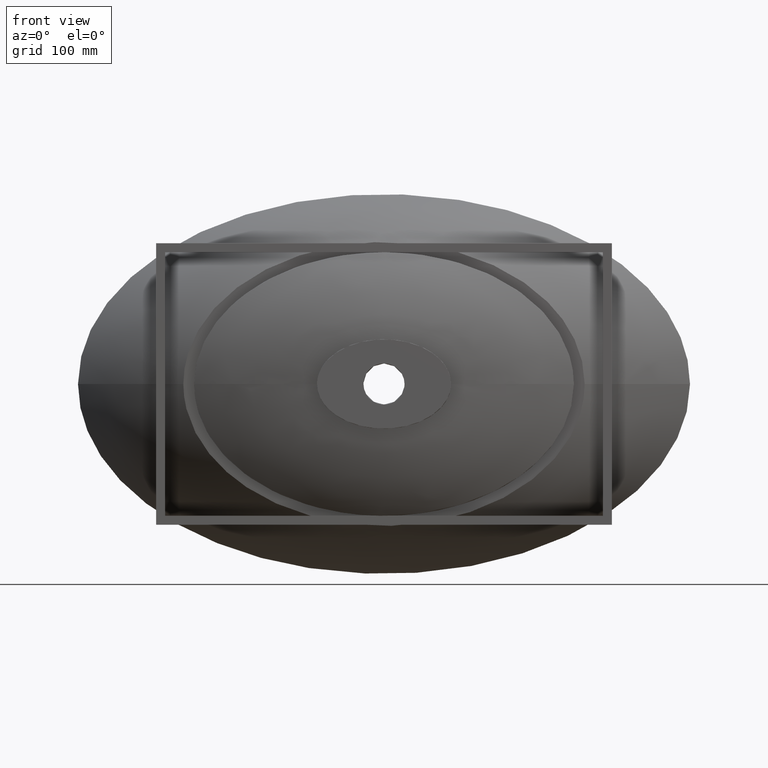
[diagram: clean part render]
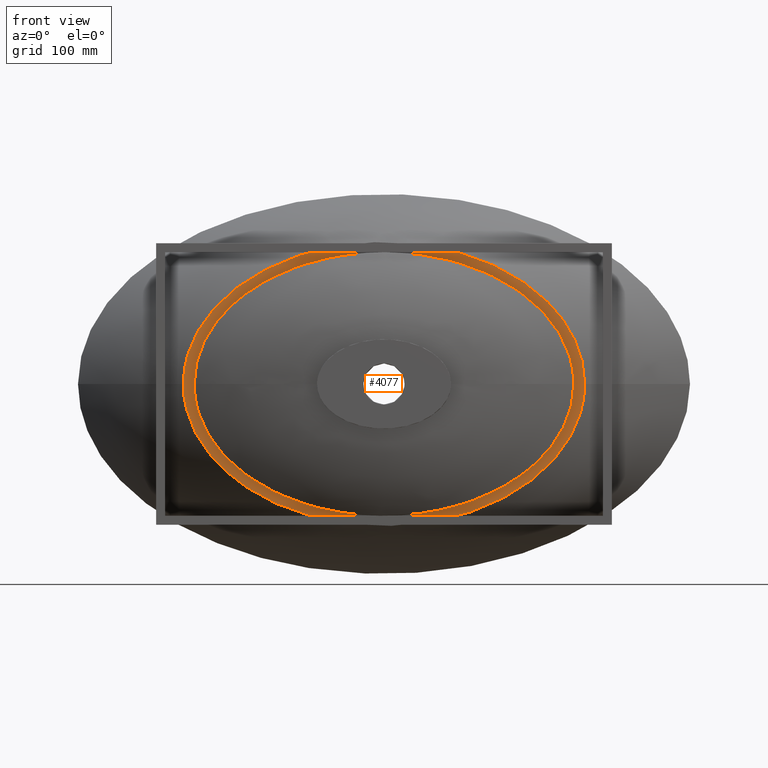
[diagram: same view with one face highlighted and labeled with its STEP entity id]
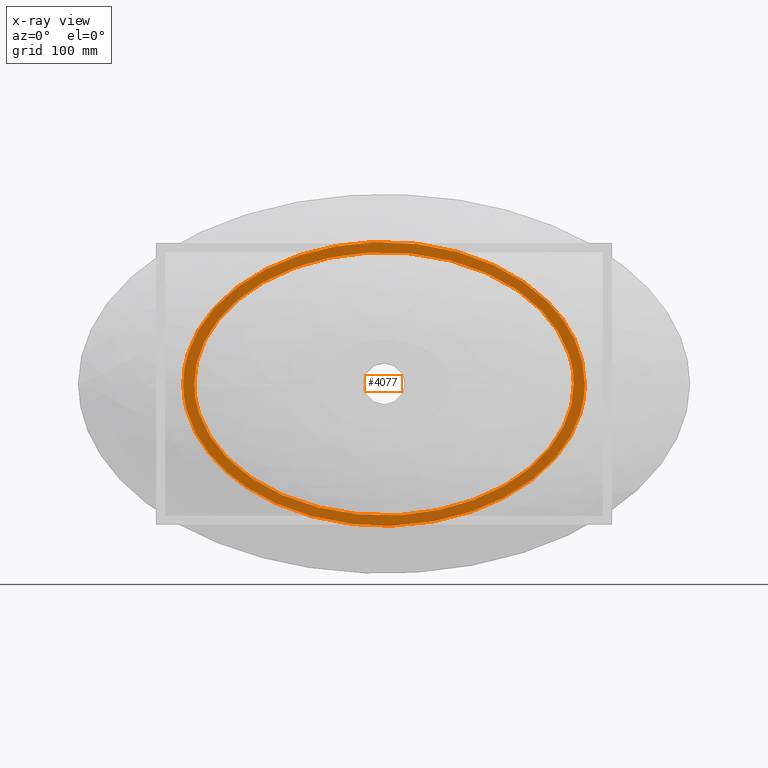
[diagram: x-ray of the same camera — body ghosted, the highlighted face saturated]
A machine part, front view. The second image highlights one B-rep face of the part: STEP entity #4077.
The next image is the same camera in x-ray: the body ghosted, the highlighted face saturated — about 0% of this face is hidden behind the body in this view.
In plain terms, the highlighted planar face has unit normal (0, -1, 0).
Its self-contained STEP definition (entity closure, byte-faithful):
#40 = FACE_OUTER_BOUND ( 'NONE', #2596, .T. ) ;
#85 = CARTESIAN_POINT ( 'NONE',  ( 80.81153180204727000, -89.99999999999997200, -148.1587488823089100 ) ) ;
#90 = CARTESIAN_POINT ( 'NONE',  ( -71.92873897644672400, -89.99999999999998600, -150.3968504112172900 ) ) ;
#102 = CARTESIAN_POINT ( 'NONE',  ( -31.49518096590334800, -89.99999999999992900, -157.3136843241640600 ) ) ;
#114 = CARTESIAN_POINT ( 'NONE',  ( 98.79011802736921800, -89.99999999999997200, -142.5698285613368900 ) ) ;
#117 = CARTESIAN_POINT ( 'NONE',  ( -212.4999999999999700, -90.00000000000000000, -294.9999999999998900 ) ) ;
#118 = CARTESIAN_POINT ( 'NONE',  ( -122.4593832958233600, -89.99999999999994300, -133.0341814347948700 ) ) ;
#143 = CARTESIAN_POINT ( 'NONE',  ( -105.0834245636851000, -90.00000000000000000, -140.2912056764173800 ) ) ;
#163 = CARTESIAN_POINT ( 'NONE',  ( -133.7517210043533600, -89.99999999999995700, -127.4778574131748000 ) ) ;
#203 = CARTESIAN_POINT ( 'NONE',  ( -212.5000000000000000, -90.00000000000000000, 0.0000000000000000000 ) ) ;
#222 = VERTEX_POINT ( 'NONE', #2876 ) ;
#239 = CARTESIAN_POINT ( 'NONE',  ( -197.1804191354389700, -90.00000000000001400, -76.03757057501891800 ) ) ;
#251 = CARTESIAN_POINT ( 'NONE',  ( 117.9179899975935900, -90.00000000000001400, -134.9948072081885500 ) ) ;
#265 = CARTESIAN_POINT ( 'NONE',  ( 116.4572048645990300, -89.99999999999995700, -135.6293690108966000 ) ) ;
#276 = CARTESIAN_POINT ( 'NONE',  ( 113.5316857372531800, -89.99999999999997200, -136.8685296211080000 ) ) ;
#321 = CARTESIAN_POINT ( 'NONE',  ( -50.21720341876704900, -90.00000000000000000, -154.8307071068389900 ) ) ;
#323 = CARTESIAN_POINT ( 'NONE',  ( -217.2857689026804200, -90.00000000000002800, -40.24274714386295000 ) ) ;
#418 = CARTESIAN_POINT ( 'NONE',  ( -224.6087551990092900, -90.00000000000005700, 6.502527523159562800E-014 ) ) ;
#423 = CARTESIAN_POINT ( 'NONE',  ( -224.6087551954226200, -90.00000000092079200, 0.7998453074805304000 ) ) ;
#425 = CARTESIAN_POINT ( 'NONE',  ( -224.6000546803275000, -90.00000000000001400, 1.602438689250854600 ) ) ;
#431 = CARTESIAN_POINT ( 'NONE',  ( -224.5653669271117700, -90.00000000000000000, 3.203643830570029700 ) ) ;
#437 = CARTESIAN_POINT ( 'NONE',  ( -224.4356304394415200, -90.00000000000001400, 6.403188930941166900 ) ) ;
#442 = CARTESIAN_POINT ( 'NONE',  ( 252.4999999999999400, -90.00000000000000000, 1.457167719820518000E-013 ) ) ;
#445 = CARTESIAN_POINT ( 'NONE',  ( -224.3320902511742400, -90.00000000000004300, 8.001125822276117500 ) ) ;
#449 = CARTESIAN_POINT ( 'NONE',  ( -224.0567963208201000, -90.00000000000005700, 11.19376168102901100 ) ) ;
#459 = CARTESIAN_POINT ( 'NONE',  ( -223.8851517060861900, -90.00000000000002800, 12.78605858766555600 ) ) ;
#466 = CARTESIAN_POINT ( 'NONE',  ( -223.4770845552599200, -90.00000000000005700, 15.94887474229779100 ) ) ;
#470 = CARTESIAN_POINT ( 'NONE',  ( -223.2404936332408500, -90.00000000000005700, 17.52147828173318800 ) ) ;
#472 = CARTESIAN_POINT ( 'NONE',  ( -221.8989846311665700, -90.00000000000002800, 25.34161784860239000 ) ) ;
#473 = CARTESIAN_POINT ( 'NONE',  ( -220.3212562188008400, -90.00000000000004300, 31.46129098439789800 ) ) ;
#485 = CARTESIAN_POINT ( 'NONE',  ( -217.2423132182350700, -90.00000000000001400, 40.44815857881395300 ) ) ;
#501 = CARTESIAN_POINT ( 'NONE',  ( -216.0965986775162500, -90.00000000000004300, 43.41149151187612900 ) ) ;
#503 = CARTESIAN_POINT ( 'NONE',  ( 86.83636199795358800, -89.99999999999998600, -146.4344793078796300 ) ) ;
#507 = CARTESIAN_POINT ( 'NONE',  ( -214.2005545410915800, -90.00000000000002800, 47.80849677269132800 ) ) ;
#517 = CARTESIAN_POINT ( 'NONE',  ( -213.5376664396139000, -89.99999999999994300, 49.26866589445636200 ) ) ;
#523 = CARTESIAN_POINT ( 'NONE',  ( -212.1637197586166200, -89.99999999999998600, 52.15098724000666400 ) ) ;
#525 = CARTESIAN_POINT ( 'NONE',  ( -211.4518818425249000, -90.00000000000001400, 53.57522240238431300 ) ) ;
#530 = CARTESIAN_POINT ( 'NONE',  ( -207.7729574092552700, -89.99999999999997200, 60.61489376676976100 ) ) ;
#533 = B_SPLINE_CURVE_WITH_KNOTS ( 'NONE', 3,
 ( #1933, #3144, #3537, #4369, #1315, #1097, #323, #4125, #3234, #3307, #3187, #1886, #3083, #4103, #239, #2900, #2981, #3753, #3988, #3208, #1590, #788, #944, #3293, #3522, #2646, #3376, #1487, #163, #118, #3584, #143, #2832, #4432, #2521, #90, #4493, #824, #837, #321, #1173, #102, #978, #832, #987, #966, #1029, #947, #1084, #1153, #1141, #1169, #1134, #1748, #1518, #1294, #587, #85, #503, #114, #1191, #3909, #276, #265, #251, #4376, #4427, #3982, #4343, #4332, #4330, #4315, #4295, #1381, #1481, #1362, #3903, #3891, #3884, #3866, #3828, #3535, #3525, #3514, #3497, #3369, #3243, #3228, #3222, #3207, #3190, #2886, #2843, #2831, #2826, #2816, #2790, #2516, #2508, #2497 ),
 .UNSPECIFIED., .F., .F.,
 ( 4, 2, 2, 2, 2, 2, 2, 2, 2, 2, 2, 2, 2, 2, 2, 2, 2, 2, 2, 2, 2, 2, 2, 2, 2, 2, 2, 2, 2, 2, 2, 2, 2, 2, 2, 2, 2, 2, 2, 2, 2, 2, 2, 2, 2, 2, 2, 2, 2, 4 ),
 ( 0.0000000000000000000, 0.01887746339497712800, 0.03775492678995425600, 0.04247429263869854200, 0.04719365848744284200, 0.05663239018493141500, 0.07550985357990859500, 0.08494858527739719600, 0.08966795112614146800, 0.09438731697488572700, 0.1132647803698628000, 0.1321422437648398800, 0.1415809754623284200, 0.1510197071598169100, 0.1698971705547939200, 0.1887746339497709000, 0.2076520973447479000, 0.2265295607397249100, 0.2359682924372134600, 0.2454070241347019500, 0.2642844875296790400, 0.2831619509246560700, 0.3020394143196331600, 0.3114781460171216500, 0.3161975118658659200, 0.3209168777146102500, 0.3397943411095872800, 0.3586718045045643700, 0.3775492678995414100, 0.3964267312945185000, 0.4153041946894955900, 0.4200235605382398600, 0.4247429263869841300, 0.4341816580844726800, 0.4530591214794497100, 0.4719365848744268000, 0.4813753165719153500, 0.4860946824206596200, 0.4908140482694038900, 0.5096915116643810900, 0.5285689750593582900, 0.5380077067568469500, 0.5427270726055911700, 0.5474464384543353800, 0.5663239018493125800, 0.5757626335468011300, 0.5804819993955454600, 0.5828416823199175100, 0.5852013652442896700, 0.6040788286392667600 ),
 .UNSPECIFIED. ) ;
#536 = CARTESIAN_POINT ( 'NONE',  ( -197.1260250187818300, -90.00000000000004300, 76.27290926580208500 ) ) ;
#538 = CARTESIAN_POINT ( 'NONE',  ( -193.1280617582166000, -90.00000000000000000, 81.18661963408023000 ) ) ;
#542 = CARTESIAN_POINT ( 'NONE',  ( -187.7483965739029900, -90.00000000000004300, 87.06858351390047800 ) ) ;
#545 = CARTESIAN_POINT ( 'NONE',  ( -186.6525112088306200, -90.00000000000000000, 88.23261647207952800 ) ) ;
#551 = CARTESIAN_POINT ( 'NONE',  ( -184.4362280467504400, -90.00000000000000000, 90.52173407779298500 ) ) ;
#555 = CARTESIAN_POINT ( 'NONE',  ( -183.3143224338888300, -89.99999999999997200, 91.64851935489943500 ) ) ;
#557 = CARTESIAN_POINT ( 'NONE',  ( -179.9088991145562800, -90.00000000000000000, 94.97760211687794700 ) ) ;
#561 = CARTESIAN_POINT ( 'NONE',  ( -177.5857356615565000, -90.00000000000002800, 97.12870495864329700 ) ) ;
#563 = CARTESIAN_POINT ( 'NONE',  ( -165.7224630461082000, -89.99999999999998600, 107.5646795078555700 ) ) ;
#569 = CARTESIAN_POINT ( 'NONE',  ( -155.4429937223311500, -90.00000000000000000, 114.8948137491105300 ) ) ;
#575 = CARTESIAN_POINT ( 'NONE',  ( -141.7777618091449200, -89.99999999999995700, 123.0039141386274900 ) ) ;
#577 = CARTESIAN_POINT ( 'NONE',  ( -138.9993322928016300, -90.00000000000001400, 124.5748564826832600 ) ) ;
#580 = CARTESIAN_POINT ( 'NONE',  ( -133.4134192301642100, -90.00000000000005700, 127.5878671535850200 ) ) ;
#583 = CARTESIAN_POINT ( 'NONE',  ( -130.6005323151618400, -90.00000000000005700, 129.0333694130205200 ) ) ;
#587 = CARTESIAN_POINT ( 'NONE',  ( 68.67115575770562000, -89.99999999999997200, -151.2136893025448200 ) ) ;
#588 = CARTESIAN_POINT ( 'NONE',  ( -122.1055136286422700, -90.00000000000005700, 133.1973753581908100 ) ) ;
#594 = CARTESIAN_POINT ( 'NONE',  ( -116.3672369096719900, -90.00000000000001400, 135.7440301446923700 ) ) ;
#598 = CARTESIAN_POINT ( 'NONE',  ( -104.7527012766200900, -90.00000000000000000, 140.4150027235470500 ) ) ;
#604 = CARTESIAN_POINT ( 'NONE',  ( -98.87631043967492400, -90.00000000000001400, 142.5389167253569300 ) ) ;
#609 = CARTESIAN_POINT ( 'NONE',  ( -86.99288216074512500, -90.00000000000000000, 146.3868605669427400 ) ) ;
#611 = CARTESIAN_POINT ( 'NONE',  ( -80.98582603244715000, -90.00000000000001400, 148.1108332115027800 ) ) ;
#615 = CARTESIAN_POINT ( 'NONE',  ( -68.84589187585037000, -90.00000000000001400, 151.1736618339303700 ) ) ;
#618 = CARTESIAN_POINT ( 'NONE',  ( -62.71299465889509900, -90.00000000000004300, 152.5124590790070400 ) ) ;
#624 = CARTESIAN_POINT ( 'NONE',  ( -53.42121377179723400, -90.00000000000002800, 154.2377289787762300 ) ) ;
#628 = CARTESIAN_POINT ( 'NONE',  ( -50.30854711549531500, -90.00000000000001400, 154.7656630349790400 ) ) ;
#631 = CARTESIAN_POINT ( 'NONE',  ( -45.61651695401130300, -89.99999999999998600, 155.4870731712728700 ) ) ;
#638 = CARTESIAN_POINT ( 'NONE',  ( -44.04866629534765100, -89.99999999999997200, 155.7157878630461900 ) ) ;
#642 = CARTESIAN_POINT ( 'NONE',  ( -40.90527020731906300, -89.99999999999994300, 156.1496650315704400 ) ) ;
#651 = CARTESIAN_POINT ( 'NONE',  ( -39.33046059786759900, -89.99999999999998600, 156.3547023028764000 ) ) ;
#652 = CARTESIAN_POINT ( 'NONE',  ( -31.46364774309314100, -90.00000000000000000, 157.3178684936547100 ) ) ;
#656 = CARTESIAN_POINT ( 'NONE',  ( -25.17311288834501700, -90.00000000000001400, 157.8933475895222200 ) ) ;
#659 = CARTESIAN_POINT ( 'NONE',  ( -12.59774625518756300, -90.00000000000000000, 158.6627471811184800 ) ) ;
#663 = CARTESIAN_POINT ( 'NONE',  ( -6.312914937644762000, -90.00000000000001400, 158.8566368430383300 ) ) ;
#664 = CARTESIAN_POINT ( 'NONE',  ( 6.250970684039582000, -89.99999999999998600, 158.8579108817761200 ) ) ;
#669 = CARTESIAN_POINT ( 'NONE',  ( 12.53002473392257500, -90.00000000000002800, 158.6652782476792000 ) ) ;
#676 = CARTESIAN_POINT ( 'NONE',  ( 25.08246012554673100, -90.00000000000004300, 157.9004861331023900 ) ) ;
#680 = CARTESIAN_POINT ( 'NONE',  ( 31.35584173745339200, -90.00000000000000000, 157.3283447277664500 ) ) ;
#682 = CARTESIAN_POINT ( 'NONE',  ( 40.76158960030000600, -90.00000000000001400, 156.1808026057484500 ) ) ;
#686 = CARTESIAN_POINT ( 'NONE',  ( 43.89611656465211100, -90.00000000000004300, 155.7499622519113400 ) ) ;
#692 = CARTESIAN_POINT ( 'NONE',  ( 48.59679948769104400, -89.99999999999998600, 155.0296039733484300 ) ) ;
#696 = CARTESIAN_POINT ( 'NONE',  ( 50.16471477788579100, -89.99999999999997200, 154.7769190946772800 ) ) ;
#703 = CARTESIAN_POINT ( 'NONE',  ( 53.29372101650160000, -89.99999999999995700, 154.2475799145172700 ) ) ;
#716 = CARTESIAN_POINT ( 'NONE',  ( 54.85427832773713400, -89.99999999999995700, 153.9710392601694200 ) ) ;
#719 = CARTESIAN_POINT ( 'NONE',  ( 62.63728458753611500, -89.99999999999997200, 152.5288264620623700 ) ) ;
#726 = CARTESIAN_POINT ( 'NONE',  ( 68.80043167479618700, -90.00000000000000000, 151.1847431554206200 ) ) ;
#730 = CARTESIAN_POINT ( 'NONE',  ( 80.99764646543667400, -90.00000000000000000, 148.1082379221355400 ) ) ;
#732 = CARTESIAN_POINT ( 'NONE',  ( 87.03173406557111500, -90.00000000000001400, 146.3758758553849200 ) ) ;
#737 = CARTESIAN_POINT ( 'NONE',  ( 98.96599375253310900, -90.00000000000000000, 142.5082634831003100 ) ) ;
#743 = CARTESIAN_POINT ( 'NONE',  ( 104.8661847472850000, -89.99999999999998600, 140.3730700625396800 ) ) ;
#745 = CARTESIAN_POINT ( 'NONE',  ( 116.5250039042551700, -89.99999999999998600, 135.6767878276130800 ) ) ;
#750 = CARTESIAN_POINT ( 'NONE',  ( 122.2837701920104500, -90.00000000000002800, 133.1161145674494700 ) ) ;
#753 = CARTESIAN_POINT ( 'NONE',  ( 129.3863615749837900, -90.00000000000002800, 129.6268562508942600 ) ) ;
#764 = CARTESIAN_POINT ( 'NONE',  ( 130.8020677230053900, -89.99999999999998600, 128.9145271759853700 ) ) ;
#771 = CARTESIAN_POINT ( 'NONE',  ( 133.6235835517602500, -89.99999999999998600, 127.4600952518097600 ) ) ;
#772 = PLANE ( 'NONE',  #1961 ) ;
#777 = CARTESIAN_POINT ( 'NONE',  ( 135.0307307824799400, -90.00000000000000000, 126.7172640077398900 ) ) ;
#781 = CARTESIAN_POINT ( 'NONE',  ( 139.2268676597655300, -89.99999999999997200, 124.4481348348908700 ) ) ;
#788 = CARTESIAN_POINT ( 'NONE',  ( -170.7249560090370200, -90.00000000000005700, -103.1776541489284000 ) ) ;
#790 = CARTESIAN_POINT ( 'NONE',  ( 141.9857422822830100, -89.99999999999998600, 122.8840140109704700 ) ) ;
#792 = CARTESIAN_POINT ( 'NONE',  ( 155.5810572553354800, -89.99999999999998600, 114.7981637988771600 ) ) ;
#801 = DIRECTION ( 'NONE',  ( 0.0000000000000000000, -1.000000000000000000, 0.0000000000000000000 ) ) ;
#807 = CARTESIAN_POINT ( 'NONE',  ( 165.8238127482177000, -90.00000000000002800, 107.4853459928598200 ) ) ;
#813 = CARTESIAN_POINT ( 'NONE',  ( 177.6624494167944600, -90.00000000000000000, 97.05871204233115200 ) ) ;
#818 = CARTESIAN_POINT ( 'NONE',  ( 179.9817316946779600, -90.00000000000001400, 94.90883194237389400 ) ) ;
#823 = CARTESIAN_POINT ( 'NONE',  ( 183.3828153854087500, -90.00000000000001400, 91.58028991884120300 ) ) ;
#824 = CARTESIAN_POINT ( 'NONE',  ( -62.63778605353660800, -90.00000000000004300, -152.4780054447743700 ) ) ;
#829 = CARTESIAN_POINT ( 'NONE',  ( 184.5035213858579900, -90.00000000000002800, 90.45346857744719700 ) ) ;
#832 = CARTESIAN_POINT ( 'NONE',  ( -12.67406838485464600, -89.99999999999994300, -158.6594433496294400 ) ) ;
#833 = CARTESIAN_POINT ( 'NONE',  ( 186.7178827508949400, -90.00000000000000000, 88.16378076996167600 ) ) ;
#834 = EDGE_CURVE ( 'NONE', #222, #2995, #2246, .T. ) ;
#837 = CARTESIAN_POINT ( 'NONE',  ( -59.53587669791127000, -90.00000000000001400, -153.1033226300071100 ) ) ;
#839 = CARTESIAN_POINT ( 'NONE',  ( 187.8124869294719000, -89.99999999999994300, 86.99979094167962000 ) ) ;
#840 = CARTESIAN_POINT ( 'NONE',  ( 193.1847376147110500, -89.99999999999990100, 81.11933213005086400 ) ) ;
#841 = ORIENTED_EDGE ( 'NONE', *, *, #3698, .T. ) ;
#847 = CARTESIAN_POINT ( 'NONE',  ( 197.1834501206726000, -89.99999999999995700, 76.20019870879747300 ) ) ;
#852 = CARTESIAN_POINT ( 'NONE',  ( 204.5155080263721700, -90.00000000000000000, 65.88415121563848200 ) ) ;
#857 = CARTESIAN_POINT ( 'NONE',  ( 207.8495164444373700, -90.00000000000005700, 60.48771323779405400 ) ) ;
#859 = CARTESIAN_POINT ( 'NONE',  ( 212.2789146312765600, -90.00000000000001400, 51.98259666664616700 ) ) ;
#877 = CARTESIAN_POINT ( 'NONE',  ( 213.6452273956722400, -89.99999999999995700, 49.10639889797718600 ) ) ;
#879 = CARTESIAN_POINT ( 'NONE',  ( 216.1484834975445900, -89.99999999999995700, 43.28056283731726200 ) ) ;
#884 = CARTESIAN_POINT ( 'NONE',  ( 217.2862887375662000, -90.00000000000004300, 40.32925495053837700 ) ) ;
#887 = CARTESIAN_POINT ( 'NONE',  ( 220.3501698825549200, -90.00000000000001400, 31.35744119371516100 ) ) ;
#897 = CARTESIAN_POINT ( 'NONE',  ( 221.9296322135329000, -89.99999999999997200, 25.22003041470064800 ) ) ;
#902 = CARTESIAN_POINT ( 'NONE',  ( 223.2699617406168800, -89.99999999999997200, 17.33443364287641200 ) ) ;
#905 = CARTESIAN_POINT ( 'NONE',  ( 223.5045626203326500, -90.00000000000005700, 15.75543658640098400 ) ) ;
#914 = CARTESIAN_POINT ( 'NONE',  ( 223.9061789635247500, -90.00000000000004300, 12.60105177421868600 ) ) ;
#915 = CARTESIAN_POINT ( 'NONE',  ( 224.0733981768048900, -89.99999999999997200, 11.02447205066923000 ) ) ;
#919 = CARTESIAN_POINT ( 'NONE',  ( 224.4747639877141700, -90.00000000000000000, 6.296562262524767900 ) ) ;
#930 = CARTESIAN_POINT ( 'NONE',  ( 224.6087551990099200, -90.00000000000002800, 2.585414352173020600E-014 ) ) ;
#944 = CARTESIAN_POINT ( 'NONE',  ( -165.7973139149754300, -89.99999999999998600, -107.1006206267164100 ) ) ;
#947 = CARTESIAN_POINT ( 'NONE',  ( 10.99847122587132200, -89.99999999999998600, -158.6643492151935400 ) ) ;
#966 = CARTESIAN_POINT ( 'NONE',  ( 3.090613245794445500, -90.00000000000000000, -158.8579475285958700 ) ) ;
#972 = EDGE_LOOP ( 'NONE', ( #2352, #841 ) ) ;
#978 = CARTESIAN_POINT ( 'NONE',  ( -25.23246130870207800, -89.99999999999995700, -157.8883358446754800 ) ) ;
#987 = CARTESIAN_POINT ( 'NONE',  ( -6.378396049985403800, -89.99999999999998600, -158.8559100277062400 ) ) ;
#1002 = CARTESIAN_POINT ( 'NONE',  ( -212.5000000000000000, -90.00000000000000000, 0.0000000000000000000 ) ) ;
#1020 = CARTESIAN_POINT ( 'NONE',  ( 224.6087551990097500, -89.99999999999997200, 3.147059091639472100 ) ) ;
#1021 = DIRECTION ( 'NONE',  ( 0.0000000000000000000, -0.0000000000000000000, -1.000000000000000000 ) ) ;
#1029 = CARTESIAN_POINT ( 'NONE',  ( 6.251210334293449300, -90.00000000000001400, -158.8097288259925200 ) ) ;
#1073 = CARTESIAN_POINT ( 'NONE',  ( 212.4999999999999400, -90.00000000000000000, 1.290858427499391300E-013 ) ) ;
#1084 = CARTESIAN_POINT ( 'NONE',  ( 12.58195296085849600, -90.00000000000000000, -158.6037076433630900 ) ) ;
#1097 = CARTESIAN_POINT ( 'NONE',  ( -217.8285328701223000, -89.99999999999998600, -38.74541202177837800 ) ) ;
#1134 = CARTESIAN_POINT ( 'NONE',  ( 31.54253993406365500, -90.00000000000007100, -157.3088500605744600 ) ) ;
#1141 = CARTESIAN_POINT ( 'NONE',  ( 17.33775372811662400, -89.99999999999997200, -158.3729181923521300 ) ) ;
#1153 = CARTESIAN_POINT ( 'NONE',  ( 15.75104183788961600, -89.99999999999997200, -158.4580320439216100 ) ) ;
#1169 = CARTESIAN_POINT ( 'NONE',  ( 25.25371375618717800, -90.00000000000005700, -157.8876890508862800 ) ) ;
#1173 = CARTESIAN_POINT ( 'NONE',  ( -43.98754927428468900, -89.99999999999994300, -155.7848384330172300 ) ) ;
#1191 = CARTESIAN_POINT ( 'NONE',  ( 104.7190650862875000, -89.99999999999998600, -140.4295394824152100 ) ) ;
#1294 = CARTESIAN_POINT ( 'NONE',  ( 62.55559045923068600, -90.00000000000000000, -152.5442757581647600 ) ) ;
#1315 = CARTESIAN_POINT ( 'NONE',  ( -220.3883722348908200, -89.99999999999998600, -31.22897779079854500 ) ) ;
#1362 = CARTESIAN_POINT ( 'NONE',  ( 172.9367599407232800, -89.99999999999997200, -101.1947425745748900 ) ) ;
#1381 = CARTESIAN_POINT ( 'NONE',  ( 169.2666230513302700, -90.00000000000001400, -104.2406708301262500 ) ) ;
#1481 = CARTESIAN_POINT ( 'NONE',  ( 170.4971058173502700, -89.99999999999998600, -103.2368024035626800 ) ) ;
#1487 = CARTESIAN_POINT ( 'NONE',  ( -139.3081764424309500, -90.00000000000001400, -124.4787277518675200 ) ) ;
#1518 = CARTESIAN_POINT ( 'NONE',  ( 50.23707641835856200, -89.99999999999997200, -154.8263077882927800 ) ) ;
#1590 = CARTESIAN_POINT ( 'NONE',  ( -180.1635837096944800, -90.00000000000002800, -94.84671529504302600 ) ) ;
#1646 =( BOUNDED_CURVE ( )  B_SPLINE_CURVE ( 3, ( #1073, #2479, #117, #203 ),
 .UNSPECIFIED., .F., .T. ) 
 B_SPLINE_CURVE_WITH_KNOTS ( ( 4, 4 ),
 ( 3.141592653589793100, 6.283185307179586200 ),
 .UNSPECIFIED. ) 
 CURVE ( )  GEOMETRIC_REPRESENTATION_ITEM ( )  RATIONAL_B_SPLINE_CURVE ( ( 1.000000000000000000, 0.3333333333333333700, 0.3333333333333333700, 1.000000000000000000 ) ) 
 REPRESENTATION_ITEM ( '' )  );
#1664 = CARTESIAN_POINT ( 'NONE',  ( -212.5000000000000000, -90.00000000000000000, 0.0000000000000000000 ) ) ;
#1688 = CARTESIAN_POINT ( 'NONE',  ( -212.5000000000001400, -90.00000000000000000, 294.9999999999998900 ) ) ;
#1690 = CARTESIAN_POINT ( 'NONE',  ( 212.4999999999998000, -90.00000000000000000, 295.0000000000000000 ) ) ;
#1691 = CARTESIAN_POINT ( 'NONE',  ( 212.4999999999999400, -90.00000000000000000, 1.290858427499391300E-013 ) ) ;
#1748 = CARTESIAN_POINT ( 'NONE',  ( 44.03422087688387900, -90.00000000000004300, -155.7781577446647200 ) ) ;
#1843 = EDGE_CURVE ( 'NONE', #2893, #4340, #3805, .T. ) ;
#1886 = CARTESIAN_POINT ( 'NONE',  ( -207.9088970923214100, -90.00000000000004300, -60.37951065173874800 ) ) ;
#1933 = CARTESIAN_POINT ( 'NONE',  ( -224.6087551990092900, -90.00000000000005700, 6.502527523159562800E-014 ) ) ;
#1961 = AXIS2_PLACEMENT_3D ( 'NONE', #442, #801, #1021 ) ;
#2179 = CARTESIAN_POINT ( 'NONE',  ( -204.4481713514543300, -90.00000000000001400, 65.98684110361628500 ) ) ;
#2246 = B_SPLINE_CURVE_WITH_KNOTS ( 'NONE', 3,
 ( #930, #1020, #919, #915, #914, #905, #902, #897, #887, #884, #879, #877, #859, #857, #852, #847, #840, #839, #833, #829, #823, #818, #813, #807, #792, #790, #781, #777, #771, #764, #753, #750, #745, #743, #737, #732, #730, #726, #719, #716, #703, #696, #692, #686, #682, #680, #676, #669, #664, #663, #659, #656, #652, #651, #642, #638, #631, #628, #624, #618, #615, #611, #609, #604, #598, #594, #588, #583, #580, #577, #575, #569, #563, #561, #557, #555, #551, #545, #542, #538, #536, #2179, #530, #525, #523, #517, #507, #501, #485, #473, #472, #470, #466, #459, #449, #445, #437, #2934, #431, #425, #423, #418 ),
 .UNSPECIFIED., .F., .F.,
 ( 4, 2, 2, 2, 2, 2, 2, 2, 2, 2, 2, 2, 2, 2, 2, 2, 2, 2, 2, 2, 2, 2, 2, 2, 2, 2, 2, 2, 2, 2, 2, 2, 2, 2, 2, 2, 2, 2, 2, 2, 2, 2, 2, 2, 2, 2, 2, 2, 2, 2, 4 ),
 ( 0.6040788286392667600, 0.6135025953234934900, 0.6182144786656068600, 0.6229263620077203400, 0.6417738953761738000, 0.6511976620604006400, 0.6606214287446273700, 0.6794689621130809400, 0.6983164954815345200, 0.7030283788236479900, 0.7077402621657613600, 0.7171640288499883100, 0.7548590955868959000, 0.7642828622711228500, 0.7689947456132363300, 0.7737066289553498100, 0.7925541623238036000, 0.8114016956922574000, 0.8302492290607111900, 0.8490967624291649900, 0.8538086457712784600, 0.8585205291133919400, 0.8679442957976187800, 0.8867918291660725800, 0.9056393625345263700, 0.9244868959029801700, 0.9433344292714339600, 0.9480463126135474400, 0.9527581959556609100, 0.9621819626398877600, 0.9810294960083415500, 0.9998770293767953500, 1.018724562745249300, 1.037572096113702900, 1.046995862797929900, 1.056419629482156600, 1.094114696219064400, 1.103538462903291400, 1.108250346245404700, 1.112962229587518300, 1.131809762955972200, 1.150657296324426100, 1.155369179666539700, 1.160081063008653300, 1.169504829692880500, 1.188352363061334400, 1.193064246403448000, 1.197776129745561600, 1.202488013087675200, 1.204843954758732000, 1.207199896429788500 ),
 .UNSPECIFIED. ) ;
#2352 = ORIENTED_EDGE ( 'NONE', *, *, #1843, .T. ) ;
#2479 = CARTESIAN_POINT ( 'NONE',  ( 212.5000000000001400, -90.00000000000000000, -294.9999999999997200 ) ) ;
#2497 = CARTESIAN_POINT ( 'NONE',  ( 224.6087551990099200, -90.00000000000002800, 2.585414352173020600E-014 ) ) ;
#2508 = CARTESIAN_POINT ( 'NONE',  ( 224.6087551990102000, -89.99999999999998600, -6.304113290887198000 ) ) ;
#2516 = CARTESIAN_POINT ( 'NONE',  ( 224.0733240961373000, -89.99999999999995700, -12.59846000056808700 ) ) ;
#2521 = CARTESIAN_POINT ( 'NONE',  ( -81.14469592579689600, -89.99999999999998600, -148.0687677139066200 ) ) ;
#2596 = EDGE_LOOP ( 'NONE', ( #4244, #3853 ) ) ;
#2646 = CARTESIAN_POINT ( 'NONE',  ( -150.1982733570854700, -90.00000000000001400, -117.9195282819157000 ) ) ;
#2790 = CARTESIAN_POINT ( 'NONE',  ( 222.8734005018287700, -89.99999999999998600, -19.66870013405123200 ) ) ;
#2816 = CARTESIAN_POINT ( 'NONE',  ( 222.7317302834446500, -90.00000000000004300, -20.45413014651796500 ) ) ;
#2826 = CARTESIAN_POINT ( 'NONE',  ( 222.4316361472448300, -90.00000000000004300, -22.02468457402707700 ) ) ;
#2831 = CARTESIAN_POINT ( 'NONE',  ( 222.2730035429755700, -90.00000000000002800, -22.81074846973792000 ) ) ;
#2832 = CARTESIAN_POINT ( 'NONE',  ( -99.17934886163736500, -90.00000000000000000, -142.4341330409102400 ) ) ;
#2843 = CARTESIAN_POINT ( 'NONE',  ( 221.7739080785880800, -90.00000000000000000, -25.15906475627704000 ) ) ;
#2876 = CARTESIAN_POINT ( 'NONE',  ( 224.6087551990099200, -90.00000000000002800, 2.585414352173020600E-014 ) ) ;
#2886 = CARTESIAN_POINT ( 'NONE',  ( 221.4101508157022500, -90.00000000000001400, -26.71250945056851100 ) ) ;
#2893 = VERTEX_POINT ( 'NONE', #1002 ) ;
#2900 = CARTESIAN_POINT ( 'NONE',  ( -194.1714240606854100, -90.00000000000000000, -79.75685156428059500 ) ) ;
#2934 = CARTESIAN_POINT ( 'NONE',  ( -224.5393796800448700, -90.00000000000002800, 4.003836122416279500 ) ) ;
#2981 = CARTESIAN_POINT ( 'NONE',  ( -193.1473340472453800, -90.00000000000005700, -80.98349842874681300 ) ) ;
#2995 = VERTEX_POINT ( 'NONE', #4118 ) ;
#3083 = CARTESIAN_POINT ( 'NONE',  ( -204.5979061967501300, -90.00000000000000000, -65.75724192354638800 ) ) ;
#3144 = CARTESIAN_POINT ( 'NONE',  ( -224.6087551954223300, -90.00000000092080700, -6.408923743359934200 ) ) ;
#3187 = CARTESIAN_POINT ( 'NONE',  ( -212.2880470677477000, -90.00000000000004300, -51.96211353571091300 ) ) ;
#3190 = CARTESIAN_POINT ( 'NONE',  ( 220.2286208997943200, -90.00000000000001400, -31.33764581661989400 ) ) ;
#3207 = CARTESIAN_POINT ( 'NONE',  ( 219.3207362685268400, -90.00000000000001400, -34.37419676488728000 ) ) ;
#3208 = CARTESIAN_POINT ( 'NONE',  ( -184.6750128059094000, -89.99999999999995700, -90.43925915975204100 ) ) ;
#3222 = CARTESIAN_POINT ( 'NONE',  ( 216.2531966887797800, -89.99999999999997200, -43.34974544242887600 ) ) ;
#3228 = CARTESIAN_POINT ( 'NONE',  ( 213.7500241037795700, -89.99999999999994300, -49.15478253167702100 ) ) ;
#3234 = CARTESIAN_POINT ( 'NONE',  ( -215.5350744975307300, -89.99999999999998600, -44.70735434682565300 ) ) ;
#3243 = CARTESIAN_POINT ( 'NONE',  ( 210.0823890495339600, -89.99999999999997200, -56.20101547989470700 ) ) ;
#3293 = CARTESIAN_POINT ( 'NONE',  ( -158.1164841772929300, -89.99999999999997200, -112.6482352998028300 ) ) ;
#3307 = CARTESIAN_POINT ( 'NONE',  ( -213.6496392154530800, -89.99999999999994300, -49.09770736711999500 ) ) ;
#3309 = CARTESIAN_POINT ( 'NONE',  ( 212.4999999999999400, -90.00000000000000000, 1.290858427499391300E-013 ) ) ;
#3369 = CARTESIAN_POINT ( 'NONE',  ( 209.3218595358477500, -89.99999999999997200, -57.59973197682167300 ) ) ;
#3376 = CARTESIAN_POINT ( 'NONE',  ( -147.4918567336652600, -90.00000000000002800, -119.6081072993277000 ) ) ;
#3397 = FACE_BOUND ( 'NONE', #972, .T. ) ;
#3497 = CARTESIAN_POINT ( 'NONE',  ( 207.7473783768681100, -90.00000000000001400, -60.37633208705955900 ) ) ;
#3514 = CARTESIAN_POINT ( 'NONE',  ( 206.9321367521307600, -90.00000000000000000, -61.75616107984691900 ) ) ;
#3522 = CARTESIAN_POINT ( 'NONE',  ( -155.5078224301236400, -90.00000000000000000, -114.4411177944490800 ) ) ;
#3525 = CARTESIAN_POINT ( 'NONE',  ( 204.4256488695691900, -90.00000000000000000, -65.83526618562596900 ) ) ;
#3535 = CARTESIAN_POINT ( 'NONE',  ( 202.6693656950534700, -89.99999999999998600, -68.48260453249623900 ) ) ;
#3537 = CARTESIAN_POINT ( 'NONE',  ( -224.0560635413302500, -89.99999999999994300, -12.71103302538964300 ) ) ;
#3579 = EDGE_CURVE ( 'NONE', #2995, #222, #533, .T. ) ;
#3584 = CARTESIAN_POINT ( 'NONE',  ( -116.7233644574984600, -89.99999999999995700, -135.5910394230998300 ) ) ;
#3698 = EDGE_CURVE ( 'NONE', #4340, #2893, #1646, .T. ) ;
#3753 = CARTESIAN_POINT ( 'NONE',  ( -191.0712827526967300, -90.00000000000002800, -83.39636217603934700 ) ) ;
#3805 =( BOUNDED_CURVE ( )  B_SPLINE_CURVE ( 3, ( #1664, #1688, #1690, #1691 ),
 .UNSPECIFIED., .F., .T. ) 
 B_SPLINE_CURVE_WITH_KNOTS ( ( 4, 4 ),
 ( 0.0000000000000000000, 3.141592653589793100 ),
 .UNSPECIFIED. ) 
 CURVE ( )  GEOMETRIC_REPRESENTATION_ITEM ( )  RATIONAL_B_SPLINE_CURVE ( ( 1.000000000000000000, 0.3333333333333333700, 0.3333333333333333700, 1.000000000000000000 ) ) 
 REPRESENTATION_ITEM ( '' )  );
#3828 = CARTESIAN_POINT ( 'NONE',  ( 197.1643688900041100, -89.99999999999997200, -76.22509187551287400 ) ) ;
#3853 = ORIENTED_EDGE ( 'NONE', *, *, #834, .T. ) ;
#3866 = CARTESIAN_POINT ( 'NONE',  ( 193.1802419544741300, -89.99999999999997200, -81.12133333213483900 ) ) ;
#3884 = CARTESIAN_POINT ( 'NONE',  ( 184.6630779186317300, -89.99999999999998600, -90.45002610276787900 ) ) ;
#3891 = CARTESIAN_POINT ( 'NONE',  ( 180.1300083498867700, -89.99999999999997200, -94.88244998325720300 ) ) ;
#3903 = CARTESIAN_POINT ( 'NONE',  ( 174.1471099944656700, -89.99999999999998600, -100.1555079163942800 ) ) ;
#3909 = CARTESIAN_POINT ( 'NONE',  ( 112.0656143814459400, -89.99999999999995700, -137.4737406620663500 ) ) ;
#3982 = CARTESIAN_POINT ( 'NONE',  ( 133.6697145851044600, -90.00000000000002800, -127.5218885530514400 ) ) ;
#3988 = CARTESIAN_POINT ( 'NONE',  ( -190.0176720058715600, -89.99999999999995700, -84.58465232998283100 ) ) ;
#4077 = ADVANCED_FACE ( 'NONE', ( #40, #3397 ), #772, .T. ) ;
#4103 = CARTESIAN_POINT ( 'NONE',  ( -199.1012574677013400, -90.00000000000001400, -73.50718710407562600 ) ) ;
#4118 = CARTESIAN_POINT ( 'NONE',  ( -224.6087551990092900, -90.00000000000005700, 6.502527523159562800E-014 ) ) ;
#4125 = CARTESIAN_POINT ( 'NONE',  ( -216.1384313590995700, -90.00000000000008500, -43.22547192077352900 ) ) ;
#4244 = ORIENTED_EDGE ( 'NONE', *, *, #3579, .T. ) ;
#4295 = CARTESIAN_POINT ( 'NONE',  ( 165.5442222526654300, -90.00000000000000000, -107.2024257246220200 ) ) ;
#4315 = CARTESIAN_POINT ( 'NONE',  ( 163.0213894420378700, -89.99999999999997200, -109.1105225613282000 ) ) ;
#4330 = CARTESIAN_POINT ( 'NONE',  ( 155.3357402587215900, -90.00000000000000000, -114.6461365519187000 ) ) ;
#4332 = CARTESIAN_POINT ( 'NONE',  ( 150.0565779750863600, -89.99999999999998600, -118.0862734178403200 ) ) ;
#4340 = VERTEX_POINT ( 'NONE', #3309 ) ;
#4343 = CARTESIAN_POINT ( 'NONE',  ( 139.2236727179949900, -90.00000000000000000, -124.5243226803477700 ) ) ;
#4369 = CARTESIAN_POINT ( 'NONE',  ( -221.9461899508508200, -89.99999999999995700, -25.12112148522080400 ) ) ;
#4376 = CARTESIAN_POINT ( 'NONE',  ( 122.2743709112379400, -89.99999999999997200, -133.0541056153611500 ) ) ;
#4427 = CARTESIAN_POINT ( 'NONE',  ( 125.1472317489458700, -90.00000000000001400, -131.7097445556651400 ) ) ;
#4432 = CARTESIAN_POINT ( 'NONE',  ( -87.20999228768825200, -90.00000000000001400, -146.3229331358800800 ) ) ;
#4493 = CARTESIAN_POINT ( 'NONE',  ( -68.83270415382749300, -90.00000000000000000, -151.1252222842379900 ) ) ;